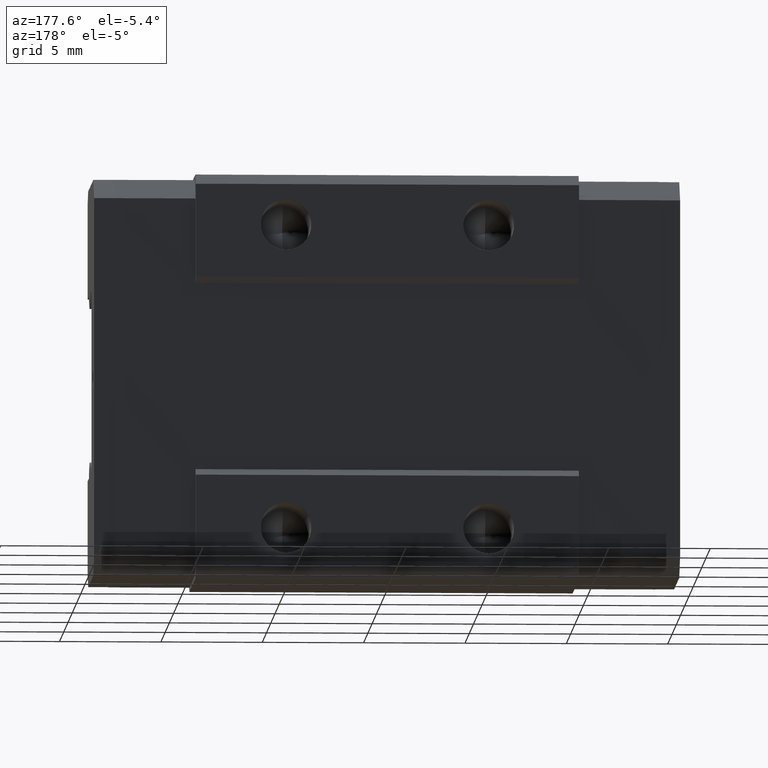
[diagram: clean part render]
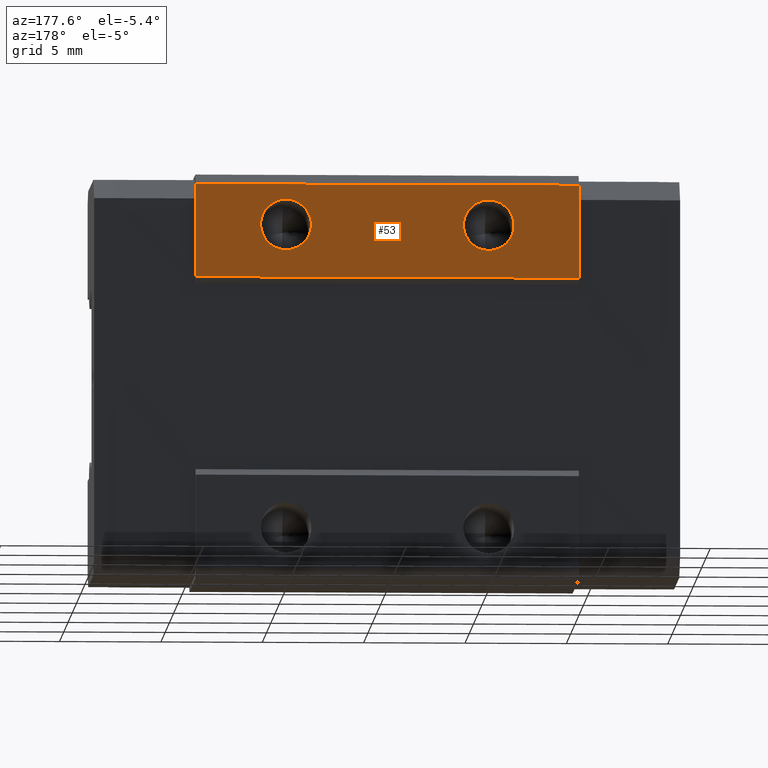
[diagram: same view with one face highlighted and labeled with its STEP entity id]
A machine part, auxiliary view. The second image highlights one B-rep face of the part: STEP entity #53.
In plain terms, the highlighted planar face has unit normal (0, -1, 0).
Its self-contained STEP definition (entity closure, byte-faithful):
#41 = EDGE_CURVE ( 'NONE', #42, #65, #349, .T. ) ;
#42 = VERTEX_POINT ( 'NONE', #411 ) ;
#43 = ORIENTED_EDGE ( 'NONE', *, *, #44, .F. ) ;
#44 = EDGE_CURVE ( 'NONE', #78, #42, #410, .T. ) ;
#53 = ADVANCED_FACE ( 'NONE', ( #392, #391, #390 ), #389, .F. ) ;
#54 = EDGE_LOOP ( 'NONE', ( #55, #57 ) ) ;
#55 = ORIENTED_EDGE ( 'NONE', *, *, #56, .F. ) ;
#56 = EDGE_CURVE ( 'NONE', #1131, #1137, #383, .T. ) ;
#57 = ORIENTED_EDGE ( 'NONE', *, *, #1139, .F. ) ;
#58 = EDGE_LOOP ( 'NONE', ( #59, #61 ) ) ;
#59 = ORIENTED_EDGE ( 'NONE', *, *, #60, .F. ) ;
#60 = EDGE_CURVE ( 'NONE', #1203, #1171, #445, .T. ) ;
#61 = ORIENTED_EDGE ( 'NONE', *, *, #1176, .F. ) ;
#62 = EDGE_LOOP ( 'NONE', ( #63, #64, #117, #43 ) ) ;
#63 = ORIENTED_EDGE ( 'NONE', *, *, #77, .T. ) ;
#64 = ORIENTED_EDGE ( 'NONE', *, *, #116, .T. ) ;
#65 = VERTEX_POINT ( 'NONE', #441 ) ;
#75 = VERTEX_POINT ( 'NONE', #421 ) ;
#77 = EDGE_CURVE ( 'NONE', #78, #75, #420, .T. ) ;
#78 = VERTEX_POINT ( 'NONE', #416 ) ;
#116 = EDGE_CURVE ( 'NONE', #75, #65, #479, .T. ) ;
#117 = ORIENTED_EDGE ( 'NONE', *, *, #41, .F. ) ;
#349 = LINE ( 'NONE', #414, #413 ) ;
#380 = DIRECTION ( 'NONE',  ( 0.0000000000000000000, 1.000000000000000000, 0.0000000000000000000 ) ) ;
#381 = CARTESIAN_POINT ( 'NONE',  ( -5.000000000000000000, 7.999999999999988500, 7.499999999999980500 ) ) ;
#382 = AXIS2_PLACEMENT_3D ( 'NONE', #381, #380, #446 ) ;
#383 = CIRCLE ( 'NONE', #382, 1.249999999999999300 ) ;
#384 = CARTESIAN_POINT ( 'NONE',  ( 5.000000000000000000, 7.999999999999988500, 7.499999999999980500 ) ) ;
#385 = DIRECTION ( 'NONE',  ( 0.0000000000000000000, -2.262682794752357000E-015, -1.000000000000000000 ) ) ;
#386 = DIRECTION ( 'NONE',  ( 0.0000000000000000000, -1.000000000000000000, 2.262682794752357000E-015 ) ) ;
#387 = CARTESIAN_POINT ( 'NONE',  ( 9.449999999999999300, 7.999999999999998200, 4.900000000000000400 ) ) ;
#388 = AXIS2_PLACEMENT_3D ( 'NONE', #387, #386, #385 ) ;
#389 = PLANE ( 'NONE',  #388 ) ;
#390 = FACE_OUTER_BOUND ( 'NONE', #62, .T. ) ;
#391 = FACE_BOUND ( 'NONE', #58, .T. ) ;
#392 = FACE_BOUND ( 'NONE', #54, .T. ) ;
#407 = DIRECTION ( 'NONE',  ( 0.0000000000000000000, 2.262682794752357000E-015, 1.000000000000000000 ) ) ;
#408 = VECTOR ( 'NONE', #407, 1000.000000000000000 ) ;
#409 = CARTESIAN_POINT ( 'NONE',  ( 9.449999999999999300, 7.999999999999998200, 4.900000000000000400 ) ) ;
#410 = LINE ( 'NONE', #409, #408 ) ;
#411 = CARTESIAN_POINT ( 'NONE',  ( 9.449999999999999300, 8.000000000000008900, 9.500000000000001800 ) ) ;
#412 = DIRECTION ( 'NONE',  ( -1.000000000000000000, 0.0000000000000000000, 0.0000000000000000000 ) ) ;
#413 = VECTOR ( 'NONE', #412, 1000.000000000000000 ) ;
#414 = CARTESIAN_POINT ( 'NONE',  ( 9.449999999999999300, 8.000000000000008900, 9.500000000000001800 ) ) ;
#416 = CARTESIAN_POINT ( 'NONE',  ( 9.449999999999999300, 7.999999999999998200, 4.900000000000000400 ) ) ;
#417 = DIRECTION ( 'NONE',  ( -1.000000000000000000, 0.0000000000000000000, 0.0000000000000000000 ) ) ;
#418 = VECTOR ( 'NONE', #417, 1000.000000000000000 ) ;
#419 = CARTESIAN_POINT ( 'NONE',  ( 9.449999999999999300, 7.999999999999998200, 4.900000000000000400 ) ) ;
#420 = LINE ( 'NONE', #419, #418 ) ;
#421 = CARTESIAN_POINT ( 'NONE',  ( -9.449999999999999300, 7.999999999999998200, 4.900000000000000400 ) ) ;
#441 = CARTESIAN_POINT ( 'NONE',  ( -9.449999999999999300, 8.000000000000008900, 9.500000000000001800 ) ) ;
#442 = DIRECTION ( 'NONE',  ( 0.0000000000000000000, 0.0000000000000000000, 1.000000000000000000 ) ) ;
#443 = DIRECTION ( 'NONE',  ( 0.0000000000000000000, 1.000000000000000000, 0.0000000000000000000 ) ) ;
#444 = AXIS2_PLACEMENT_3D ( 'NONE', #384, #443, #442 ) ;
#445 = CIRCLE ( 'NONE', #444, 1.249999999999999300 ) ;
#446 = DIRECTION ( 'NONE',  ( 0.0000000000000000000, 0.0000000000000000000, 1.000000000000000000 ) ) ;
#476 = DIRECTION ( 'NONE',  ( 0.0000000000000000000, 2.262682794752357000E-015, 1.000000000000000000 ) ) ;
#477 = VECTOR ( 'NONE', #476, 1000.000000000000000 ) ;
#478 = CARTESIAN_POINT ( 'NONE',  ( -9.449999999999999300, 7.999999999999998200, 4.900000000000000400 ) ) ;
#479 = LINE ( 'NONE', #478, #477 ) ;
#1131 = VERTEX_POINT ( 'NONE', #2382 ) ;
#1137 = VERTEX_POINT ( 'NONE', #2371 ) ;
#1139 = EDGE_CURVE ( 'NONE', #1137, #1131, #2365, .T. ) ;
#1171 = VERTEX_POINT ( 'NONE', #2480 ) ;
#1176 = EDGE_CURVE ( 'NONE', #1171, #1203, #2474, .T. ) ;
#1203 = VERTEX_POINT ( 'NONE', #2493 ) ;
#2362 = DIRECTION ( 'NONE',  ( 0.0000000000000000000, 1.000000000000000000, 0.0000000000000000000 ) ) ;
#2363 = CARTESIAN_POINT ( 'NONE',  ( -5.000000000000000000, 7.999999999999988500, 7.499999999999980500 ) ) ;
#2364 = AXIS2_PLACEMENT_3D ( 'NONE', #2363, #2362, #2425 ) ;
#2365 = CIRCLE ( 'NONE', #2364, 1.249999999999999300 ) ;
#2371 = CARTESIAN_POINT ( 'NONE',  ( -5.000000000000000000, 7.999999999999988500, 6.249999999999981300 ) ) ;
#2382 = CARTESIAN_POINT ( 'NONE',  ( -5.000000000000000000, 7.999999999999988500, 8.749999999999980500 ) ) ;
#2425 = DIRECTION ( 'NONE',  ( 0.0000000000000000000, 0.0000000000000000000, 1.000000000000000000 ) ) ;
#2470 = DIRECTION ( 'NONE',  ( 0.0000000000000000000, 0.0000000000000000000, 1.000000000000000000 ) ) ;
#2471 = DIRECTION ( 'NONE',  ( 0.0000000000000000000, 1.000000000000000000, 0.0000000000000000000 ) ) ;
#2472 = CARTESIAN_POINT ( 'NONE',  ( 5.000000000000000000, 7.999999999999988500, 7.499999999999980500 ) ) ;
#2473 = AXIS2_PLACEMENT_3D ( 'NONE', #2472, #2471, #2470 ) ;
#2474 = CIRCLE ( 'NONE', #2473, 1.249999999999999300 ) ;
#2480 = CARTESIAN_POINT ( 'NONE',  ( 5.000000000000000000, 7.999999999999988500, 6.249999999999982200 ) ) ;
#2493 = CARTESIAN_POINT ( 'NONE',  ( 5.000000000000000000, 7.999999999999988500, 8.749999999999980500 ) ) ;